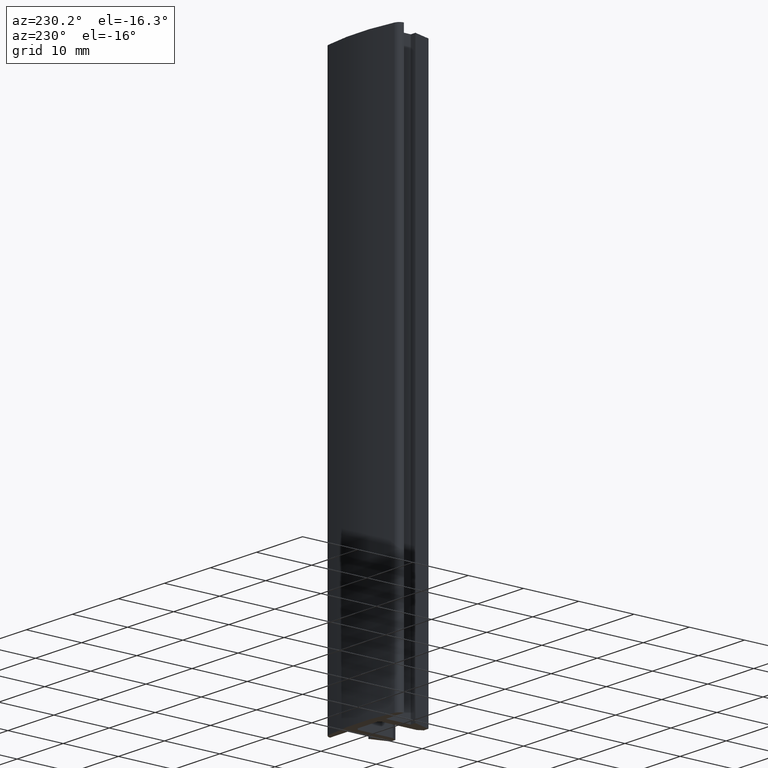
[diagram: clean part render]
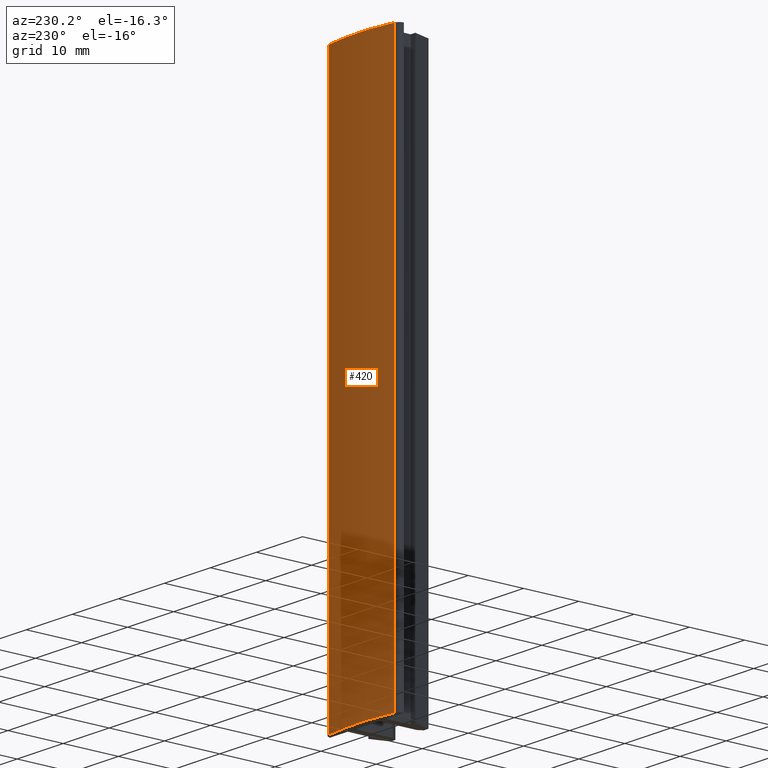
[diagram: same view with one face highlighted and labeled with its STEP entity id]
A machine part, auxiliary view. The second image highlights one B-rep face of the part: STEP entity #420.
In plain terms, the highlighted cylindrical surface (partial cylindrical patch) has radius 40 mm, axis along (0, 0, 1).
Its self-contained STEP definition (entity closure, byte-faithful):
#17=CIRCLE('',#465,40.);
#18=CIRCLE('',#466,40.);
#22=CYLINDRICAL_SURFACE('',#464,40.);
#29=FACE_OUTER_BOUND('',#51,.T.);
#51=EDGE_LOOP('',(#296,#297,#298,#299));
#81=LINE('',#630,#135);
#82=LINE('',#636,#136);
#135=VECTOR('',#514,10.);
#136=VECTOR('',#521,10.);
#186=VERTEX_POINT('',#626);
#187=VERTEX_POINT('',#628);
#188=VERTEX_POINT('',#632);
#189=VERTEX_POINT('',#634);
#231=EDGE_CURVE('',#186,#187,#81,.T.);
#232=EDGE_CURVE('',#188,#186,#17,.T.);
#233=EDGE_CURVE('',#189,#187,#18,.T.);
#234=EDGE_CURVE('',#188,#189,#82,.T.);
#296=ORIENTED_EDGE('',*,*,#232,.T.);
#297=ORIENTED_EDGE('',*,*,#231,.T.);
#298=ORIENTED_EDGE('',*,*,#233,.F.);
#299=ORIENTED_EDGE('',*,*,#234,.F.);
#420=ADVANCED_FACE('',(#29),#22,.T.);
#464=AXIS2_PLACEMENT_3D('',#631,#515,#516);
#465=AXIS2_PLACEMENT_3D('',#633,#517,#518);
#466=AXIS2_PLACEMENT_3D('',#635,#519,#520);
#514=DIRECTION('',(0.,0.,1.));
#515=DIRECTION('center_axis',(0.,0.,1.));
#516=DIRECTION('ref_axis',(0.179487179487179,0.983760312474404,0.));
#517=DIRECTION('center_axis',(0.,0.,1.));
#518=DIRECTION('ref_axis',(0.179487179487179,0.983760312474404,0.));
#519=DIRECTION('center_axis',(0.,0.,1.));
#520=DIRECTION('ref_axis',(0.179487179487179,0.983760312474404,0.));
#521=DIRECTION('',(0.,0.,1.));
#626=CARTESIAN_POINT('',(-7.17948717948719,0.983760312474405,0.));
#628=CARTESIAN_POINT('',(-7.17948717948719,0.983760312474405,100.));
#630=CARTESIAN_POINT('',(-7.17948717948719,0.983760312474405,0.));
#631=CARTESIAN_POINT('Origin',(-2.4459601011273E-15,-38.3666521865018,0.));
#632=CARTESIAN_POINT('',(7.17948717948717,0.983760312474409,0.));
#633=CARTESIAN_POINT('Origin',(-2.4459601011273E-15,-38.3666521865018,0.));
#634=CARTESIAN_POINT('',(7.17948717948717,0.983760312474409,100.));
#635=CARTESIAN_POINT('Origin',(-2.4459601011273E-15,-38.3666521865018,100.));
#636=CARTESIAN_POINT('',(7.17948717948717,0.983760312474409,0.));